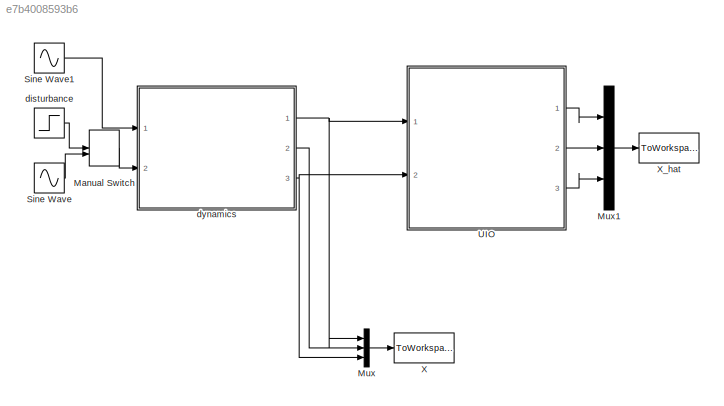
MODEL slx_e7b4008593b6
KIND model
BLOCK [ManualSwitch] Manual Switch
BLOCK [Mux] Mux
  DisplayOption = bar
  Inputs = 3
  Ports = [3, 1]
BLOCK [Mux] Mux1
  DisplayOption = bar
  Inputs = 3
  Ports = [3, 1]
BLOCK [Sin] Sine Wave
  Amplitude = 20
  Frequency = 2
  Ports = [0, 1]
  SampleTime = 0
BLOCK [Sin] Sine Wave1
  Frequency = 2
  Ports = [0, 1]
  SampleTime = 0
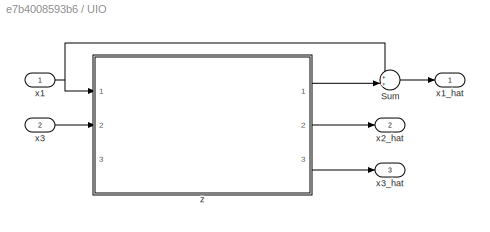
BLOCK [SubSystem] UIO
  Ports = [2, 3]
  RequestExecContextInheritance = off
BLOCK [Sum] UIO/Sum
  IconShape = round
  InputSameDT = off
  Inputs = ++|
  OutDataTypeStr = Inherit: Inherit via internal rule
  Ports = [2, 1]
  SaturateOnIntegerOverflow = off
BLOCK [Inport] UIO/x1
  IconDisplay = Port number
BLOCK [Outport] UIO/x1_hat
  IconDisplay = Port number
BLOCK [Outport] UIO/x2_hat
  IconDisplay = Port number
  Port = 2
BLOCK [Inport] UIO/x3
  IconDisplay = Port number
  Port = 2
BLOCK [Outport] UIO/x3_hat
  IconDisplay = Port number
  Port = 3
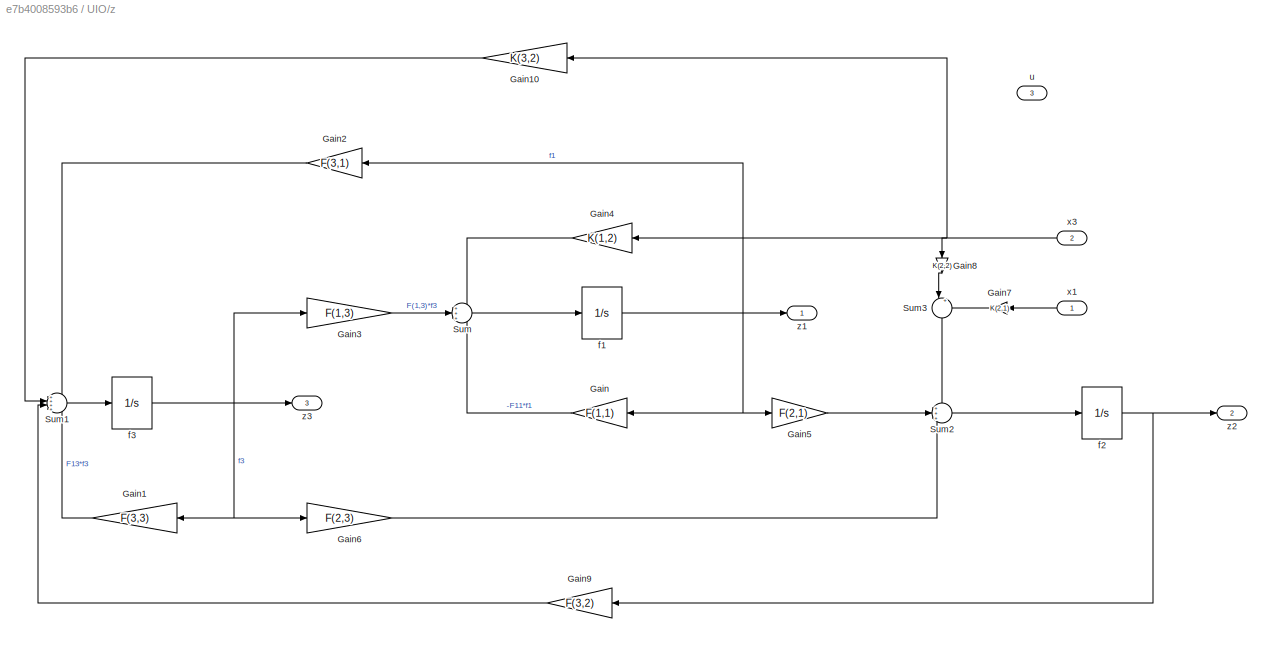
BLOCK [SubSystem] UIO/z
  Ports = [3, 3]
  RequestExecContextInheritance = off
BLOCK [Gain] UIO/z/Gain
  Gain = F(1,1)
  OutDataTypeStr = Inherit: Inherit via internal rule
  ParamDataTypeStr = Inherit: Inherit via internal rule
  SaturateOnIntegerOverflow = off
BLOCK [Gain] UIO/z/Gain1
  Gain = F(3,3)
  OutDataTypeStr = Inherit: Inherit via internal rule
  ParamDataTypeStr = Inherit: Inherit via internal rule
  SaturateOnIntegerOverflow = off
BLOCK [Gain] UIO/z/Gain10
  Gain = K(3,2)
  OutDataTypeStr = Inherit: Inherit via internal rule
  ParamDataTypeStr = Inherit: Inherit via internal rule
  SaturateOnIntegerOverflow = off
BLOCK [Gain] UIO/z/Gain2
  Gain = F(3,1)
  OutDataTypeStr = Inherit: Inherit via internal rule
  ParamDataTypeStr = Inherit: Inherit via internal rule
  SaturateOnIntegerOverflow = off
BLOCK [Gain] UIO/z/Gain3
  Gain = F(1,3)
  OutDataTypeStr = Inherit: Inherit via internal rule
  ParamDataTypeStr = Inherit: Inherit via internal rule
  SaturateOnIntegerOverflow = off
BLOCK [Gain] UIO/z/Gain4
  Gain = K(1,2)
  OutDataTypeStr = Inherit: Inherit via internal rule
  ParamDataTypeStr = Inherit: Inherit via internal rule
  SaturateOnIntegerOverflow = off
BLOCK [Gain] UIO/z/Gain5
  Gain = F(2,1)
  OutDataTypeStr = Inherit: Inherit via internal rule
  ParamDataTypeStr = Inherit: Inherit via internal rule
  SaturateOnIntegerOverflow = off
BLOCK [Gain] UIO/z/Gain6
  Gain = F(2,3)
  OutDataTypeStr = Inherit: Inherit via internal rule
  ParamDataTypeStr = Inherit: Inherit via internal rule
  SaturateOnIntegerOverflow = off
BLOCK [Gain] UIO/z/Gain7
  Gain = K(2,1)
  OutDataTypeStr = Inherit: Inherit via internal rule
  ParamDataTypeStr = Inherit: Inherit via internal rule
  SaturateOnIntegerOverflow = off
BLOCK [Gain] UIO/z/Gain8
  Gain = K(2,2)
  OutDataTypeStr = Inherit: Inherit via internal rule
  ParamDataTypeStr = Inherit: Inherit via internal rule
  SaturateOnIntegerOverflow = off
BLOCK [Gain] UIO/z/Gain9
  Gain = F(3,2)
  OutDataTypeStr = Inherit: Inherit via internal rule
  ParamDataTypeStr = Inherit: Inherit via internal rule
  SaturateOnIntegerOverflow = off
BLOCK [Sum] UIO/z/Sum
  IconShape = round
  InputSameDT = off
  Inputs = +++
  OutDataTypeStr = Inherit: Inherit via internal rule
  Ports = [3, 1]
  SaturateOnIntegerOverflow = off
BLOCK [Sum] UIO/z/Sum1
  IconShape = round
  InputSameDT = off
  Inputs = ++++
  OutDataTypeStr = Inherit: Inherit via internal rule
  Ports = [4, 1]
  SaturateOnIntegerOverflow = off
BLOCK [Sum] UIO/z/Sum2
  IconShape = round
  InputSameDT = off
  Inputs = +++
  OutDataTypeStr = Inherit: Inherit via internal rule
  Ports = [3, 1]
  SaturateOnIntegerOverflow = off
BLOCK [Sum] UIO/z/Sum3
  IconShape = round
  InputSameDT = off
  Inputs = |++
  OutDataTypeStr = Inherit: Inherit via internal rule
  Ports = [2, 1]
  SaturateOnIntegerOverflow = off
BLOCK [Integrator] UIO/z/f1
  InitialCondition = x1_0
  Ports = [1, 1]
BLOCK [Integrator] UIO/z/f2
  InitialCondition = x1_0
  Ports = [1, 1]
BLOCK [Integrator] UIO/z/f3
  InitialCondition = x3_0
  Ports = [1, 1]
BLOCK [Inport] UIO/z/u
  IconDisplay = Port number
  Port = 3
BLOCK [Inport] UIO/z/x1
  IconDisplay = Port number
BLOCK [Inport] UIO/z/x3
  IconDisplay = Port number
  Port = 2
BLOCK [Outport] UIO/z/z1
  IconDisplay = Port number
BLOCK [Outport] UIO/z/z2
  IconDisplay = Port number
  Port = 2
BLOCK [Outport] UIO/z/z3
  IconDisplay = Port number
  Port = 3
BLOCK [ToWorkspace] X
  FixptAsFi = on
  MaxDataPoints = inf
  Ports = [1]
  SampleTime = -1
  Save2DSignal = 3-D array (concatenate along third dimension)
  VariableName = X
BLOCK [ToWorkspace] X_hat
  FixptAsFi = on
  MaxDataPoints = inf
  Ports = [1]
  SampleTime = -1
  Save2DSignal = 3-D array (concatenate along third dimension)
  VariableName = X_hat
BLOCK [Step] disturbance
  After = d
  SampleTime = 0
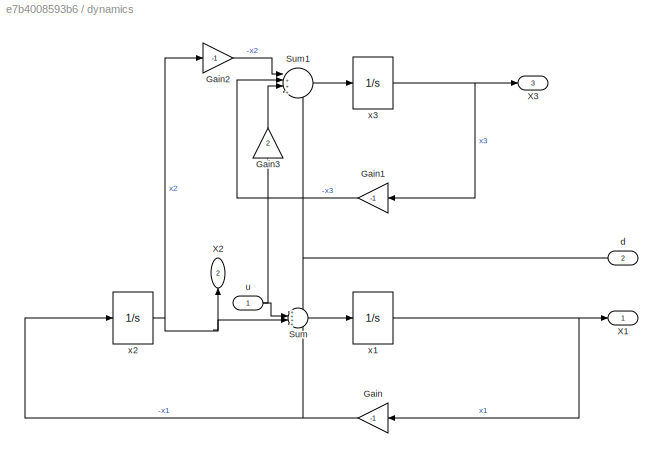
BLOCK [SubSystem] dynamics
  Ports = [2, 3]
  RequestExecContextInheritance = off
BLOCK [Gain] dynamics/Gain
  Gain = -1
  OutDataTypeStr = Inherit: Inherit via internal rule
  ParamDataTypeStr = Inherit: Inherit via internal rule
  SaturateOnIntegerOverflow = off
BLOCK [Gain] dynamics/Gain1
  Gain = -1
  OutDataTypeStr = Inherit: Inherit via internal rule
  ParamDataTypeStr = Inherit: Inherit via internal rule
  SaturateOnIntegerOverflow = off
BLOCK [Gain] dynamics/Gain2
  Gain = -1
  OutDataTypeStr = Inherit: Inherit via internal rule
  ParamDataTypeStr = Inherit: Inherit via internal rule
  SaturateOnIntegerOverflow = off
BLOCK [Gain] dynamics/Gain3
  Gain = 2
  OutDataTypeStr = Inherit: Inherit via internal rule
  ParamDataTypeStr = Inherit: Inherit via internal rule
  SaturateOnIntegerOverflow = off
BLOCK [Sum] dynamics/Sum
  IconShape = round
  InputSameDT = off
  Inputs = ++++
  OutDataTypeStr = Inherit: Inherit via internal rule
  Ports = [4, 1]
  SaturateOnIntegerOverflow = off
BLOCK [Sum] dynamics/Sum1
  IconShape = round
  InputSameDT = off
  Inputs = |++++
  OutDataTypeStr = Inherit: Inherit via internal rule
  Ports = [4, 1]
  SaturateOnIntegerOverflow = off
BLOCK [Outport] dynamics/X1
  IconDisplay = Port number
BLOCK [Outport] dynamics/X2
  IconDisplay = Port number
  Port = 2
BLOCK [Outport] dynamics/X3
  IconDisplay = Port number
  Port = 3
BLOCK [Inport] dynamics/d
  IconDisplay = Port number
  Port = 2
BLOCK [Inport] dynamics/u
  IconDisplay = Port number
BLOCK [Integrator] dynamics/x1
  InitialCondition = x1_0
  Ports = [1, 1]
BLOCK [Integrator] dynamics/x2
  InitialCondition = x2_0
  Ports = [1, 1]
BLOCK [Integrator] dynamics/x3
  InitialCondition = x3_0
  Ports = [1, 1]
LINE Manual Switch:1 -> dynamics:2
LINE Mux1:1 -> X_hat:1
LINE Mux:1 -> X:1
LINE Sine Wave1:1 -> dynamics:1
LINE Sine Wave:1 -> Manual Switch:2
LINE UIO/Sum:1 -> UIO/x1_hat:1
NET UIO/x1:1 -> UIO/Sum:1, UIO/z:1
LINE UIO/x3:1 -> UIO/z:2
LINE UIO/z/Gain10:1 -> UIO/z/Sum1:2
LINE UIO/z/Gain1:1 -> UIO/z/Sum1:4
LINE UIO/z/Gain2:1 -> UIO/z/Sum1:1
LINE UIO/z/Gain3:1 -> UIO/z/Sum:2
LINE UIO/z/Gain4:1 -> UIO/z/Sum:1
LINE UIO/z/Gain5:1 -> UIO/z/Sum2:2
LINE UIO/z/Gain6:1 -> UIO/z/Sum2:3
LINE UIO/z/Gain7:1 -> UIO/z/Sum3:2
LINE UIO/z/Gain8:1 -> UIO/z/Sum3:1
LINE UIO/z/Gain9:1 -> UIO/z/Sum1:3
LINE UIO/z/Gain:1 -> UIO/z/Sum:3
LINE UIO/z/Sum1:1 -> UIO/z/f3:1
LINE UIO/z/Sum2:1 -> UIO/z/f2:1
LINE UIO/z/Sum3:1 -> UIO/z/Sum2:1
LINE UIO/z/Sum:1 -> UIO/z/f1:1
NET UIO/z/f1:1 -> UIO/z/Gain2:1, UIO/z/Gain5:1, UIO/z/Gain:1, UIO/z/z1:1
NET UIO/z/f2:1 -> UIO/z/Gain9:1, UIO/z/z2:1
NET UIO/z/f3:1 -> UIO/z/Gain1:1, UIO/z/Gain3:1, UIO/z/Gain6:1, UIO/z/z3:1
LINE UIO/z/x1:1 -> UIO/z/Gain7:1
NET UIO/z/x3:1 -> UIO/z/Gain10:1, UIO/z/Gain4:1, UIO/z/Gain8:1
LINE UIO/z:1 -> UIO/Sum:2
LINE UIO/z:2 -> UIO/x2_hat:1
LINE UIO/z:3 -> UIO/x3_hat:1
LINE UIO:1 -> Mux1:1
LINE UIO:2 -> Mux1:2
LINE UIO:3 -> Mux1:3
LINE disturbance:1 -> Manual Switch:1
LINE dynamics/Gain1:1 -> dynamics/Sum1:2
LINE dynamics/Gain2:1 -> dynamics/Sum1:1
LINE dynamics/Gain3:1 -> dynamics/Sum1:3
NET dynamics/Gain:1 -> dynamics/Sum:4, dynamics/x2:1
LINE dynamics/Sum1:1 -> dynamics/x3:1
LINE dynamics/Sum:1 -> dynamics/x1:1
NET dynamics/d:1 -> dynamics/Sum1:4, dynamics/Sum:1
NET dynamics/u:1 -> dynamics/Gain3:1, dynamics/Sum:2
NET dynamics/x1:1 -> dynamics/Gain:1, dynamics/X1:1
NET dynamics/x2:1 -> dynamics/Gain2:1, dynamics/Sum:3, dynamics/X2:1
NET dynamics/x3:1 -> dynamics/Gain1:1, dynamics/X3:1
NET dynamics:1 -> Mux:1, UIO:1
LINE dynamics:2 -> Mux:2
NET dynamics:3 -> Mux:3, UIO:2
note: NET lines group one-source signal fan-out (src -> all destinations, sorted); 1:1 wires keep LINE
